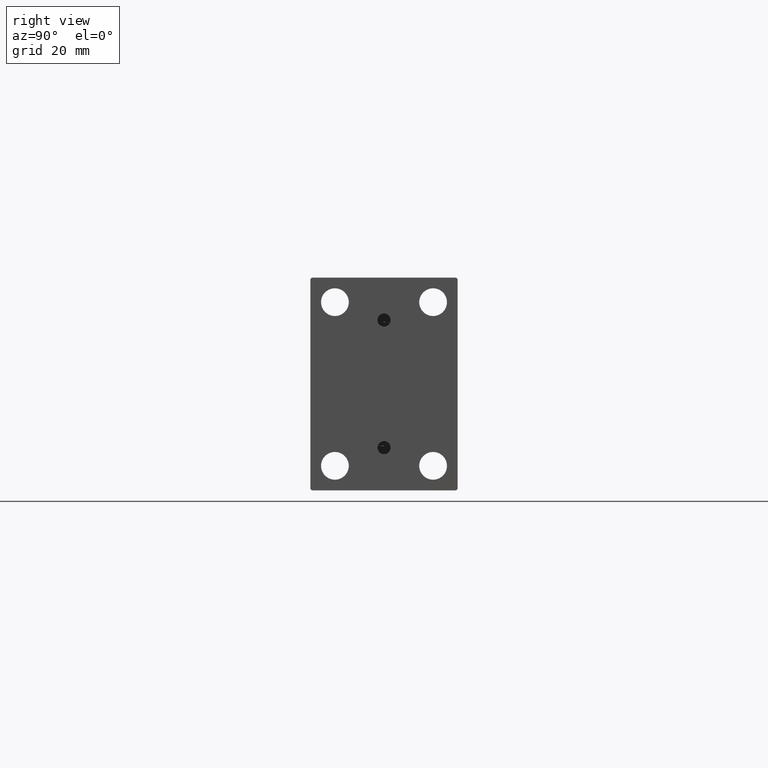
[diagram: clean part render]
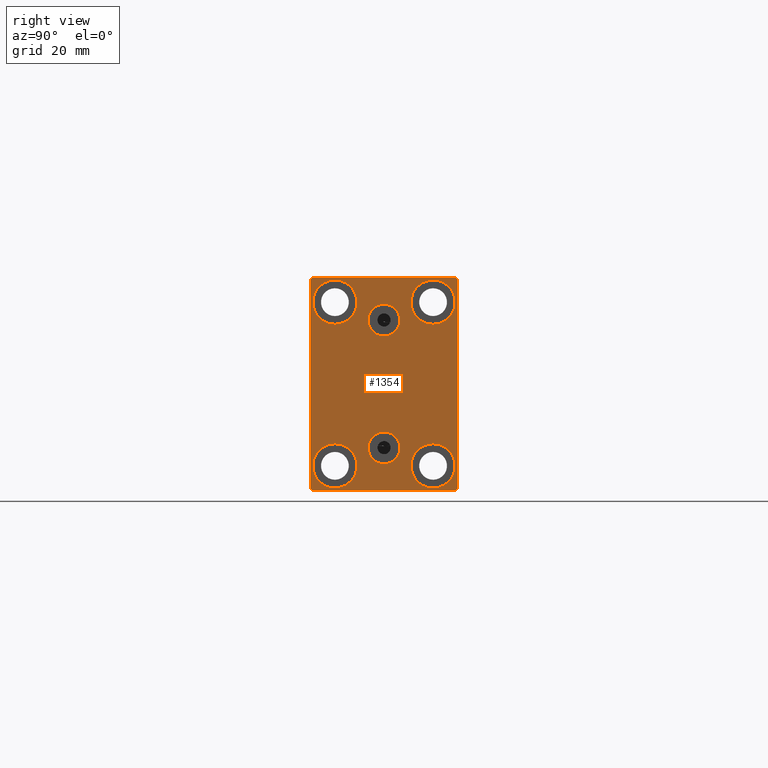
[diagram: same view with one face highlighted and labeled with its STEP entity id]
A machine part, right view. The second image highlights one B-rep face of the part: STEP entity #1354.
In plain terms, the highlighted planar face has unit normal (1, 0, 0).
Its self-contained STEP definition (entity closure, byte-faithful):
#225 = ORIENTED_EDGE ( 'NONE', *, *, #7943, .T. ) ;
#410 = LINE ( 'NONE', #14007, #16505 ) ;
#1354 = ADVANCED_FACE ( 'NONE', ( #15105, #35327, #11432, #18556, #22230, #25450, #15341 ), #28675, .T. ) ;
#1357 = CARTESIAN_POINT ( 'NONE',  ( 170.0000000000000000, 14.99999999999999645, -18.25000000000000355 ) ) ;
#1407 = DIRECTION ( 'NONE',  ( 0.000000000000000000, 0.000000000000000000, 1.000000000000000000 ) ) ;
#1426 = CIRCLE ( 'NONE', #22718, 4.859999999999999432 ) ;
#2031 = EDGE_CURVE ( 'NONE', #30170, #23658, #410, .T. ) ;
#2142 = CIRCLE ( 'NONE', #30049, 6.749999999999999112 ) ;
#2343 = CARTESIAN_POINT ( 'NONE',  ( 170.0000000000000000, 15.00000000000000355, 25.00000000000000000 ) ) ;
#2578 = CARTESIAN_POINT ( 'NONE',  ( 170.0000000000000000, -22.50000000000000711, -31.99999999999995381 ) ) ;
#2595 = CARTESIAN_POINT ( 'NONE',  ( 170.0000000000000000, 14.99999999999999645, -25.00000000000000000 ) ) ;
#2876 = CARTESIAN_POINT ( 'NONE',  ( 170.0000000000000000, -21.99999999999999289, 32.49999999999999289 ) ) ;
#2948 = VERTEX_POINT ( 'NONE', #22353 ) ;
#3158 = VERTEX_POINT ( 'NONE', #4770 ) ;
#3281 = CARTESIAN_POINT ( 'NONE',  ( 170.0000000000000000, -22.50000000000000711, 31.99999999999999289 ) ) ;
#3384 = VECTOR ( 'NONE', #9271, 1000.000000000000114 ) ;
#4002 = AXIS2_PLACEMENT_3D ( 'NONE', #18885, #21877, #1407 ) ;
#4099 = EDGE_CURVE ( 'NONE', #31099, #44208, #22614, .T. ) ;
#4170 = ORIENTED_EDGE ( 'NONE', *, *, #6004, .T. ) ;
#4406 = AXIS2_PLACEMENT_3D ( 'NONE', #16724, #34613, #41293 ) ;
#4770 = CARTESIAN_POINT ( 'NONE',  ( 170.0000000000000000, 15.00000000000000355, 18.25000000000000355 ) ) ;
#4801 = CARTESIAN_POINT ( 'NONE',  ( 170.0000000000000000, 2.388061258337338150E-15, -19.49999999999999645 ) ) ;
#4857 = ORIENTED_EDGE ( 'NONE', *, *, #43548, .T. ) ;
#5590 = CARTESIAN_POINT ( 'NONE',  ( 170.0000000000000000, 27.25000000000014921, 27.24999999999976907 ) ) ;
#5824 = CARTESIAN_POINT ( 'NONE',  ( 170.0000000000000000, -27.25000000000000000, 27.25000000000000000 ) ) ;
#6004 = EDGE_CURVE ( 'NONE', #17044, #3158, #42977, .T. ) ;
#6698 = DIRECTION ( 'NONE',  ( 0.000000000000000000, 0.000000000000000000, 1.000000000000000000 ) ) ;
#7117 = DIRECTION ( 'NONE',  ( -0.000000000000000000, 0.7071067811865474617, -0.7071067811865474617 ) ) ;
#7943 = EDGE_CURVE ( 'NONE', #31519, #39810, #28417, .T. ) ;
#8102 = EDGE_LOOP ( 'NONE', ( #40545, #4857, #17031, #25805, #31285, #40421, #19837, #40304 ) ) ;
#9271 = DIRECTION ( 'NONE',  ( 0.000000000000000000, -0.7071067811865474617, -0.7071067811865474617 ) ) ;
#9386 = LINE ( 'NONE', #29392, #17220 ) ;
#10050 = AXIS2_PLACEMENT_3D ( 'NONE', #2595, #24429, #38211 ) ;
#10566 = AXIS2_PLACEMENT_3D ( 'NONE', #32792, #18338, #28896 ) ;
#10587 = AXIS2_PLACEMENT_3D ( 'NONE', #18279, #32284, #35951 ) ;
#11232 = CARTESIAN_POINT ( 'NONE',  ( 170.0000000000000000, -2.976515330312223406E-15, 24.36000000000000298 ) ) ;
#11254 = EDGE_LOOP ( 'NONE', ( #225, #15385 ) ) ;
#11302 = CARTESIAN_POINT ( 'NONE',  ( 170.0000000000000000, 22.50000000000000000, -31.99999999999997868 ) ) ;
#11432 = FACE_BOUND ( 'NONE', #11254, .T. ) ;
#12006 = DIRECTION ( 'NONE',  ( -1.000000000000000000, -0.000000000000000000, -0.000000000000000000 ) ) ;
#12156 = DIRECTION ( 'NONE',  ( 0.000000000000000000, 0.000000000000000000, 1.000000000000000000 ) ) ;
#12233 = CARTESIAN_POINT ( 'NONE',  ( 170.0000000000000000, -14.99999999999999645, 25.00000000000000000 ) ) ;
#12700 = EDGE_LOOP ( 'NONE', ( #41333, #22584 ) ) ;
#12801 = EDGE_LOOP ( 'NONE', ( #26752, #17790 ) ) ;
#12929 = CARTESIAN_POINT ( 'NONE',  ( 170.0000000000000000, -14.99999999999999645, 25.00000000000000000 ) ) ;
#13560 = DIRECTION ( 'NONE',  ( 1.000000000000000000, 0.000000000000000000, -0.000000000000000000 ) ) ;
#14007 = CARTESIAN_POINT ( 'NONE',  ( 170.0000000000000000, -22.50000000000000711, 32.49999999999999289 ) ) ;
#14923 = CIRCLE ( 'NONE', #39225, 4.859999999999999432 ) ;
#15105 = FACE_BOUND ( 'NONE', #34775, .T. ) ;
#15341 = FACE_OUTER_BOUND ( 'NONE', #8102, .T. ) ;
#15385 = ORIENTED_EDGE ( 'NONE', *, *, #35287, .T. ) ;
#15622 = ORIENTED_EDGE ( 'NONE', *, *, #30239, .F. ) ;
#16505 = VECTOR ( 'NONE', #24786, 1000.000000000000000 ) ;
#16724 = CARTESIAN_POINT ( 'NONE',  ( 170.0000000000000000, -3.571693674697836683E-15, 19.50000000000000355 ) ) ;
#16838 = DIRECTION ( 'NONE',  ( 0.000000000000000000, 0.000000000000000000, 1.000000000000000000 ) ) ;
#16890 = VERTEX_POINT ( 'NONE', #37177 ) ;
#17030 = LINE ( 'NONE', #31039, #23848 ) ;
#17031 = ORIENTED_EDGE ( 'NONE', *, *, #2031, .T. ) ;
#17044 = VERTEX_POINT ( 'NONE', #39880 ) ;
#17220 = VECTOR ( 'NONE', #26613, 1000.000000000000000 ) ;
#17686 = CARTESIAN_POINT ( 'NONE',  ( 170.0000000000000000, 2.388061258337338150E-15, -19.49999999999999645 ) ) ;
#17790 = ORIENTED_EDGE ( 'NONE', *, *, #37828, .T. ) ;
#17924 = CARTESIAN_POINT ( 'NONE',  ( 170.0000000000000000, -3.571693674697836683E-15, 19.50000000000000355 ) ) ;
#18279 = CARTESIAN_POINT ( 'NONE',  ( 170.0000000000000000, -15.00000000000000355, -25.00000000000000000 ) ) ;
#18338 = DIRECTION ( 'NONE',  ( 1.000000000000000000, 0.000000000000000000, 0.000000000000000000 ) ) ;
#18455 = CARTESIAN_POINT ( 'NONE',  ( 170.0000000000000000, -15.00000000000000355, -25.00000000000000000 ) ) ;
#18556 = FACE_BOUND ( 'NONE', #12700, .T. ) ;
#18713 = CARTESIAN_POINT ( 'NONE',  ( 170.0000000000000000, 22.50000000000000000, -32.50000000000000711 ) ) ;
#18885 = CARTESIAN_POINT ( 'NONE',  ( 170.0000000000000000, 14.99999999999999645, -25.00000000000000000 ) ) ;
#19324 = EDGE_CURVE ( 'NONE', #28016, #43976, #2142, .T. ) ;
#19594 = DIRECTION ( 'NONE',  ( -1.000000000000000000, -0.000000000000000000, -0.000000000000000000 ) ) ;
#19628 = DIRECTION ( 'NONE',  ( -0.000000000000000000, -0.7071067811865425767, 0.7071067811865525687 ) ) ;
#19693 = EDGE_CURVE ( 'NONE', #2948, #29520, #1426, .T. ) ;
#19837 = ORIENTED_EDGE ( 'NONE', *, *, #4099, .T. ) ;
#19839 = CARTESIAN_POINT ( 'NONE',  ( 170.0000000000000000, 15.00000000000000355, 25.00000000000000000 ) ) ;
#20270 = AXIS2_PLACEMENT_3D ( 'NONE', #18455, #12006, #26023 ) ;
#20424 = CARTESIAN_POINT ( 'NONE',  ( 170.0000000000000000, -3.571693674697836683E-15, 14.64000000000000412 ) ) ;
#20703 = VERTEX_POINT ( 'NONE', #28921 ) ;
#21046 = AXIS2_PLACEMENT_3D ( 'NONE', #19839, #26716, #30398 ) ;
#21591 = DIRECTION ( 'NONE',  ( 1.000000000000000000, 0.000000000000000000, 0.000000000000000000 ) ) ;
#21693 = CIRCLE ( 'NONE', #20270, 6.749999999999999112 ) ;
#21877 = DIRECTION ( 'NONE',  ( -1.000000000000000000, -0.000000000000000000, -0.000000000000000000 ) ) ;
#22015 = VERTEX_POINT ( 'NONE', #2876 ) ;
#22230 = FACE_BOUND ( 'NONE', #44632, .T. ) ;
#22353 = CARTESIAN_POINT ( 'NONE',  ( 170.0000000000000000, 2.388061258337338150E-15, -24.35999999999999588 ) ) ;
#22366 = EDGE_CURVE ( 'NONE', #28416, #39176, #44024, .T. ) ;
#22472 = CARTESIAN_POINT ( 'NONE',  ( 170.0000000000000000, 21.99999999999998579, -32.50000000000000711 ) ) ;
#22584 = ORIENTED_EDGE ( 'NONE', *, *, #38764, .T. ) ;
#22614 = LINE ( 'NONE', #18713, #45164 ) ;
#22718 = AXIS2_PLACEMENT_3D ( 'NONE', #17686, #13560, #27577 ) ;
#23411 = CARTESIAN_POINT ( 'NONE',  ( 170.0000000000000000, 2.983239602722951428E-15, -14.63999999999999702 ) ) ;
#23658 = VERTEX_POINT ( 'NONE', #2578 ) ;
#23788 = CIRCLE ( 'NONE', #10587, 6.749999999999999112 ) ;
#23848 = VECTOR ( 'NONE', #7117, 1000.000000000000114 ) ;
#23950 = DIRECTION ( 'NONE',  ( 0.000000000000000000, 1.000000000000000000, 0.000000000000000000 ) ) ;
#24429 = DIRECTION ( 'NONE',  ( -1.000000000000000000, -0.000000000000000000, -0.000000000000000000 ) ) ;
#24568 = CARTESIAN_POINT ( 'NONE',  ( 170.0000000000000000, 22.49999999999999289, 31.99999999999999289 ) ) ;
#24786 = DIRECTION ( 'NONE',  ( 0.000000000000000000, 0.000000000000000000, -1.000000000000000000 ) ) ;
#25450 = FACE_BOUND ( 'NONE', #12801, .T. ) ;
#25805 = ORIENTED_EDGE ( 'NONE', *, *, #35459, .T. ) ;
#25992 = CARTESIAN_POINT ( 'NONE',  ( 170.0000000000000000, 22.49999999999999289, 32.50000000000000000 ) ) ;
#26023 = DIRECTION ( 'NONE',  ( 0.000000000000000000, 0.000000000000000000, 1.000000000000000000 ) ) ;
#26446 = CARTESIAN_POINT ( 'NONE',  ( 170.0000000000000000, -14.99999999999999645, 18.25000000000000355 ) ) ;
#26613 = DIRECTION ( 'NONE',  ( -0.000000000000000000, 0.7071067811865279218, 0.7071067811865672237 ) ) ;
#26716 = DIRECTION ( 'NONE',  ( -1.000000000000000000, -0.000000000000000000, -0.000000000000000000 ) ) ;
#26752 = ORIENTED_EDGE ( 'NONE', *, *, #32989, .T. ) ;
#26908 = DIRECTION ( 'NONE',  ( 0.000000000000000000, -1.000000000000000000, -1.541976423090495387E-16 ) ) ;
#27161 = EDGE_CURVE ( 'NONE', #27792, #45213, #32515, .T. ) ;
#27405 = DIRECTION ( 'NONE',  ( -1.000000000000000000, -0.000000000000000000, -0.000000000000000000 ) ) ;
#27486 = VECTOR ( 'NONE', #26908, 1000.000000000000000 ) ;
#27577 = DIRECTION ( 'NONE',  ( 0.000000000000000000, 0.000000000000000000, 1.000000000000000000 ) ) ;
#27792 = VERTEX_POINT ( 'NONE', #44511 ) ;
#28016 = VERTEX_POINT ( 'NONE', #26446 ) ;
#28416 = VERTEX_POINT ( 'NONE', #11232 ) ;
#28417 = CIRCLE ( 'NONE', #10050, 6.749999999999999112 ) ;
#28500 = DIRECTION ( 'NONE',  ( 0.000000000000000000, 0.000000000000000000, -1.000000000000000000 ) ) ;
#28675 = PLANE ( 'NONE',  #10566 ) ;
#28896 = DIRECTION ( 'NONE',  ( 0.000000000000000000, 0.000000000000000000, -1.000000000000000000 ) ) ;
#28921 = CARTESIAN_POINT ( 'NONE',  ( 170.0000000000000000, 21.99999999999999289, 32.50000000000000000 ) ) ;
#28985 = CIRCLE ( 'NONE', #4002, 6.749999999999999112 ) ;
#29085 = AXIS2_PLACEMENT_3D ( 'NONE', #12929, #27405, #6698 ) ;
#29392 = CARTESIAN_POINT ( 'NONE',  ( 170.0000000000000000, 27.25000000000061462, -27.24999999999909761 ) ) ;
#29520 = VERTEX_POINT ( 'NONE', #23411 ) ;
#30049 = AXIS2_PLACEMENT_3D ( 'NONE', #12233, #19594, #43688 ) ;
#30061 = EDGE_CURVE ( 'NONE', #44208, #20703, #37066, .T. ) ;
#30170 = VERTEX_POINT ( 'NONE', #3281 ) ;
#30239 = EDGE_CURVE ( 'NONE', #29520, #2948, #14923, .T. ) ;
#30398 = DIRECTION ( 'NONE',  ( 0.000000000000000000, 0.000000000000000000, 1.000000000000000000 ) ) ;
#30480 = CARTESIAN_POINT ( 'NONE',  ( 170.0000000000000000, -14.99999999999999645, 31.75000000000000000 ) ) ;
#30619 = ORIENTED_EDGE ( 'NONE', *, *, #19693, .F. ) ;
#31039 = CARTESIAN_POINT ( 'NONE',  ( 170.0000000000000000, -27.24999999999997868, -27.24999999999997868 ) ) ;
#31099 = VERTEX_POINT ( 'NONE', #11302 ) ;
#31285 = ORIENTED_EDGE ( 'NONE', *, *, #27161, .T. ) ;
#31519 = VERTEX_POINT ( 'NONE', #43394 ) ;
#32284 = DIRECTION ( 'NONE',  ( -1.000000000000000000, -0.000000000000000000, -0.000000000000000000 ) ) ;
#32515 = LINE ( 'NONE', #43698, #37578 ) ;
#32792 = CARTESIAN_POINT ( 'NONE',  ( 170.0000000000000000, 0.000000000000000000, 0.000000000000000000 ) ) ;
#32989 = EDGE_CURVE ( 'NONE', #34819, #16890, #23788, .T. ) ;
#33471 = CIRCLE ( 'NONE', #29085, 6.749999999999999112 ) ;
#33962 = VECTOR ( 'NONE', #19628, 999.9999999999998863 ) ;
#34101 = CIRCLE ( 'NONE', #36322, 4.859999999999999432 ) ;
#34211 = AXIS2_PLACEMENT_3D ( 'NONE', #2343, #34283, #16838 ) ;
#34283 = DIRECTION ( 'NONE',  ( -1.000000000000000000, -0.000000000000000000, -0.000000000000000000 ) ) ;
#34571 = EDGE_CURVE ( 'NONE', #20703, #22015, #40689, .T. ) ;
#34613 = DIRECTION ( 'NONE',  ( 1.000000000000000000, 0.000000000000000000, 0.000000000000000000 ) ) ;
#34775 = EDGE_LOOP ( 'NONE', ( #42349, #37779 ) ) ;
#34819 = VERTEX_POINT ( 'NONE', #43601 ) ;
#34820 = EDGE_CURVE ( 'NONE', #45213, #31099, #9386, .T. ) ;
#35287 = EDGE_CURVE ( 'NONE', #39810, #31519, #28985, .T. ) ;
#35327 = FACE_BOUND ( 'NONE', #43409, .T. ) ;
#35459 = EDGE_CURVE ( 'NONE', #23658, #27792, #17030, .T. ) ;
#35522 = EDGE_CURVE ( 'NONE', #39176, #28416, #34101, .T. ) ;
#35951 = DIRECTION ( 'NONE',  ( 0.000000000000000000, 0.000000000000000000, 1.000000000000000000 ) ) ;
#36275 = DIRECTION ( 'NONE',  ( 1.000000000000000000, 0.000000000000000000, -0.000000000000000000 ) ) ;
#36322 = AXIS2_PLACEMENT_3D ( 'NONE', #17924, #21591, #28500 ) ;
#36511 = ORIENTED_EDGE ( 'NONE', *, *, #44755, .T. ) ;
#37066 = LINE ( 'NONE', #5590, #33962 ) ;
#37177 = CARTESIAN_POINT ( 'NONE',  ( 170.0000000000000000, -15.00000000000000355, -18.25000000000000355 ) ) ;
#37302 = LINE ( 'NONE', #5824, #3384 ) ;
#37578 = VECTOR ( 'NONE', #23950, 1000.000000000000000 ) ;
#37779 = ORIENTED_EDGE ( 'NONE', *, *, #22366, .F. ) ;
#37828 = EDGE_CURVE ( 'NONE', #16890, #34819, #21693, .T. ) ;
#38211 = DIRECTION ( 'NONE',  ( 0.000000000000000000, 0.000000000000000000, 1.000000000000000000 ) ) ;
#38764 = EDGE_CURVE ( 'NONE', #43976, #28016, #33471, .T. ) ;
#39176 = VERTEX_POINT ( 'NONE', #20424 ) ;
#39225 = AXIS2_PLACEMENT_3D ( 'NONE', #4801, #36275, #12156 ) ;
#39810 = VERTEX_POINT ( 'NONE', #1357 ) ;
#39880 = CARTESIAN_POINT ( 'NONE',  ( 170.0000000000000000, 15.00000000000000355, 31.75000000000000000 ) ) ;
#40304 = ORIENTED_EDGE ( 'NONE', *, *, #30061, .T. ) ;
#40421 = ORIENTED_EDGE ( 'NONE', *, *, #34820, .T. ) ;
#40545 = ORIENTED_EDGE ( 'NONE', *, *, #34571, .T. ) ;
#40689 = LINE ( 'NONE', #25992, #27486 ) ;
#40859 = CIRCLE ( 'NONE', #21046, 6.749999999999999112 ) ;
#41293 = DIRECTION ( 'NONE',  ( 0.000000000000000000, 0.000000000000000000, -1.000000000000000000 ) ) ;
#41333 = ORIENTED_EDGE ( 'NONE', *, *, #19324, .T. ) ;
#42349 = ORIENTED_EDGE ( 'NONE', *, *, #35522, .F. ) ;
#42977 = CIRCLE ( 'NONE', #34211, 6.749999999999999112 ) ;
#43046 = DIRECTION ( 'NONE',  ( 0.000000000000000000, -1.067522139062650425E-16, 1.000000000000000000 ) ) ;
#43394 = CARTESIAN_POINT ( 'NONE',  ( 170.0000000000000000, 14.99999999999999645, -31.75000000000000000 ) ) ;
#43409 = EDGE_LOOP ( 'NONE', ( #30619, #15622 ) ) ;
#43548 = EDGE_CURVE ( 'NONE', #22015, #30170, #37302, .T. ) ;
#43601 = CARTESIAN_POINT ( 'NONE',  ( 170.0000000000000000, -15.00000000000000355, -31.75000000000000000 ) ) ;
#43688 = DIRECTION ( 'NONE',  ( 0.000000000000000000, 0.000000000000000000, 1.000000000000000000 ) ) ;
#43698 = CARTESIAN_POINT ( 'NONE',  ( 170.0000000000000000, -22.50000000000000711, -32.50000000000000711 ) ) ;
#43976 = VERTEX_POINT ( 'NONE', #30480 ) ;
#44024 = CIRCLE ( 'NONE', #4406, 4.859999999999999432 ) ;
#44208 = VERTEX_POINT ( 'NONE', #24568 ) ;
#44511 = CARTESIAN_POINT ( 'NONE',  ( 170.0000000000000000, -21.99999999999995026, -32.50000000000000711 ) ) ;
#44632 = EDGE_LOOP ( 'NONE', ( #36511, #4170 ) ) ;
#44755 = EDGE_CURVE ( 'NONE', #3158, #17044, #40859, .T. ) ;
#45164 = VECTOR ( 'NONE', #43046, 1000.000000000000000 ) ;
#45213 = VERTEX_POINT ( 'NONE', #22472 ) ;